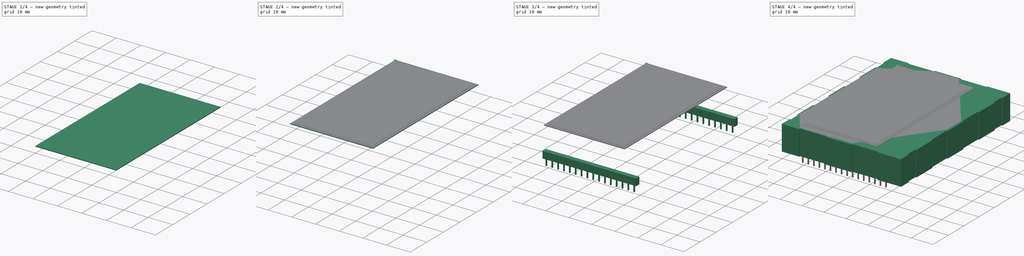
[diagram: build sequence overview — one tinted view per stage of 4, left to right]
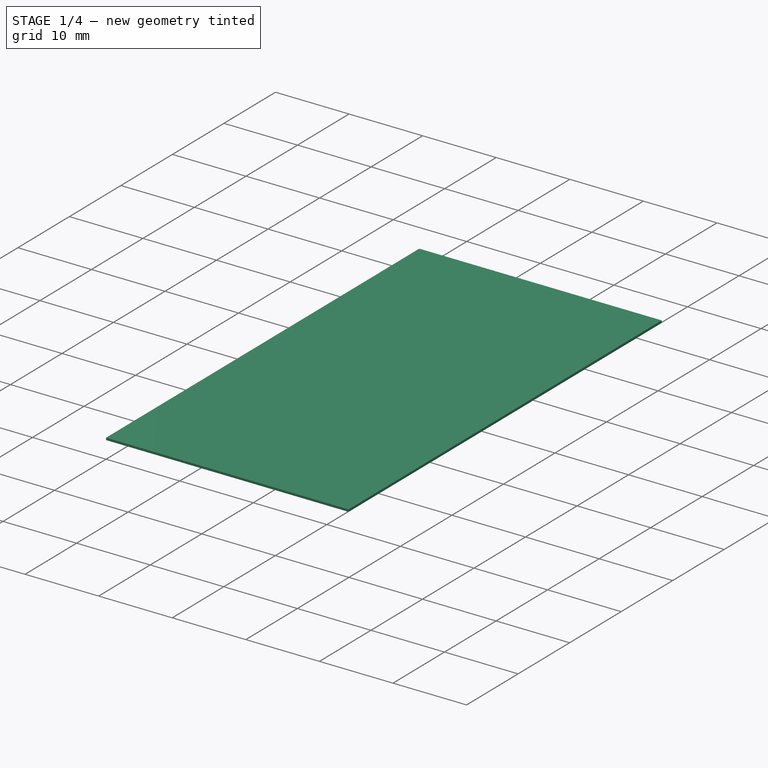
[diagram: stage 1 of 4 — iso view after this stage's code; geometry added in this stage tinted green]
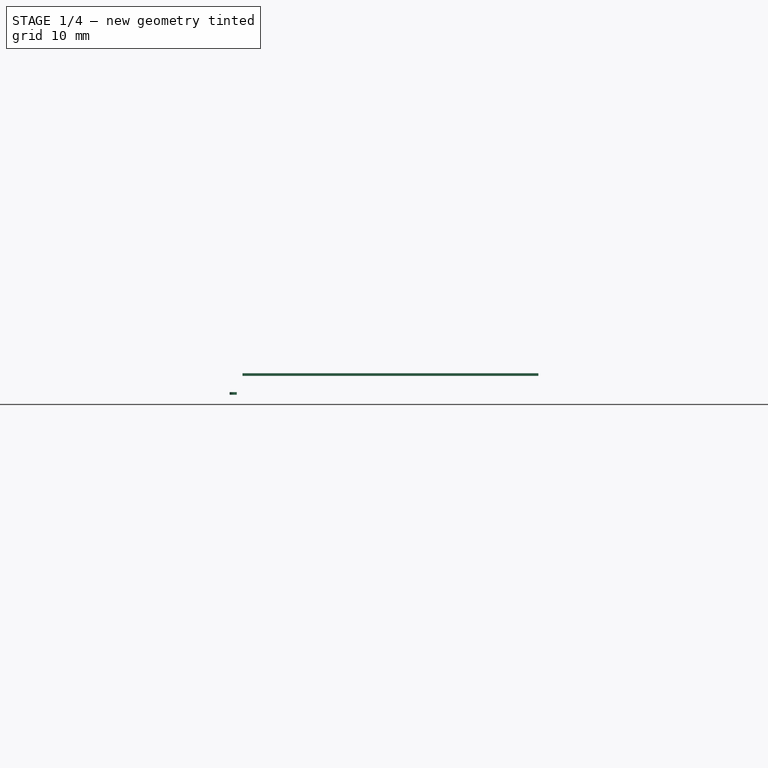
[diagram: stage 1 of 4 — front view after this stage's code; geometry added in this stage tinted green]
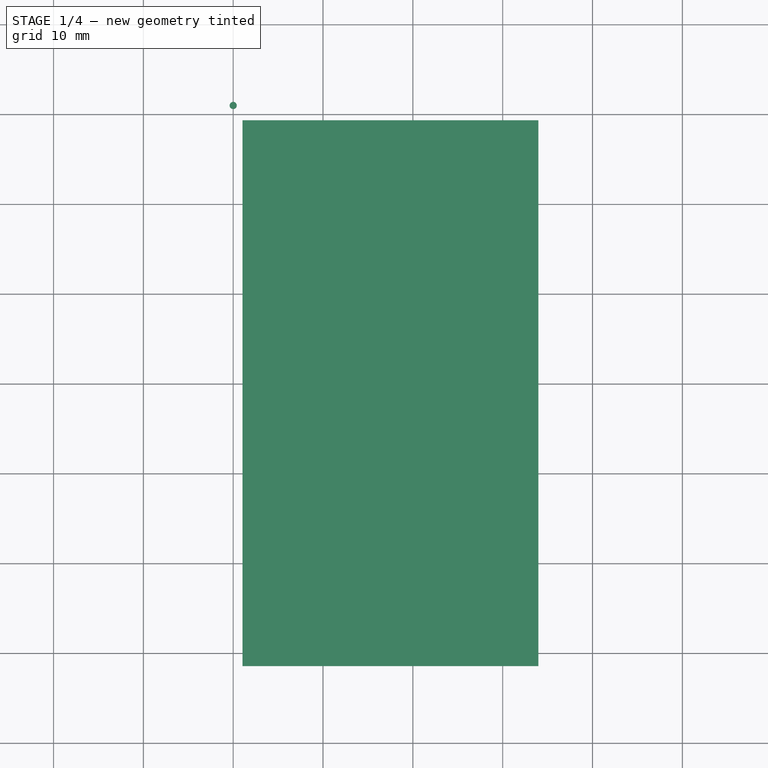
[diagram: stage 1 of 4 — top view after this stage's code; geometry added in this stage tinted green]
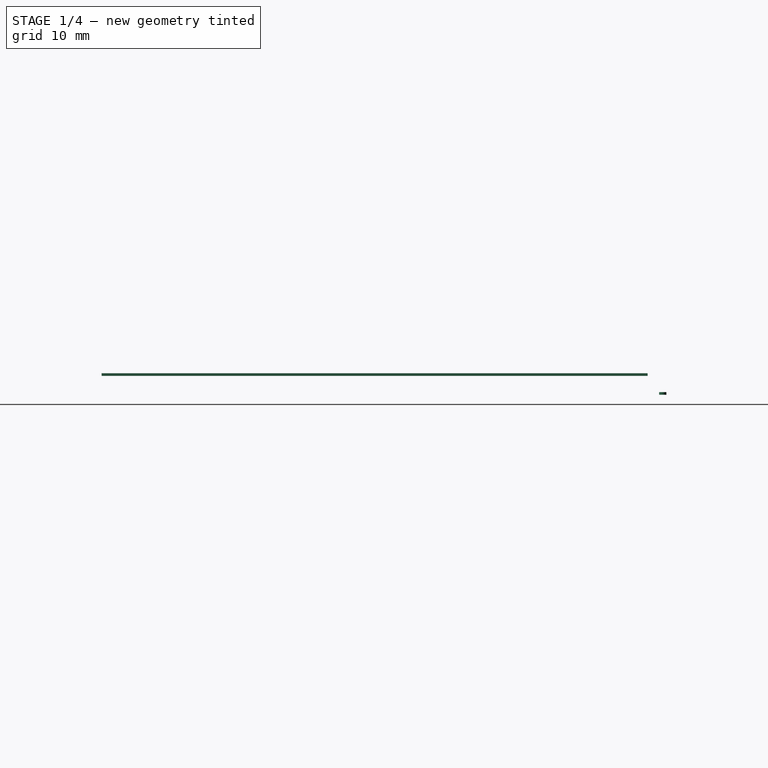
[diagram: stage 1 of 4 — right view after this stage's code; geometry added in this stage tinted green]
FCSTD DOCUMENT  (FreeCAD 0.17R11223 (Git))
Label: EA-eDIP128B-XXX_5
License: All rights reserved
LicenseURL: http://en.wikipedia.org/wiki/All_rights_reserved
objects: Part::Box×5, Sketcher::SketchObject×1, PartDesign::Pad×1, PartDesign::Body×1, Part::Fillet×1, Part::FeaturePython×1, Part::Cylinder×1, Part::MultiFuse×1
note: 13 computed .brp shape members not serialized (recipe doc carries the construction recipe); baked Part::Feature solids carry a one-line shape summary decoded from their .brp

FEATURE [Part::Cylinder] Cylinder
  Angle = 360
  AttacherType = Attacher::AttachEngine3D
  Height = 0.3
  Placement = pos=(0,1,11.4) rot=(0,0,1;0rad)
  Radius = 0.4
FEATURE [Part::Box] Box004  label="Display"
  AttacherType = Attacher::AttachEngine3D
  Height = 0.3
  Length = 32.945
  Placement = pos=(1.03,-61.46,13.5) rot=(0,0,1;0rad)
  Width = 60.78
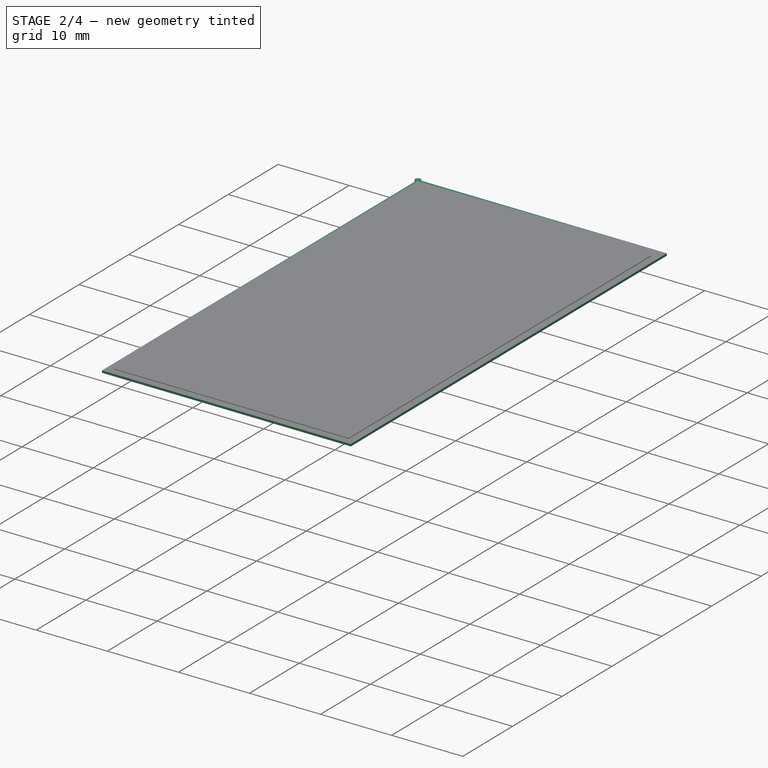
[diagram: stage 2 of 4 — iso view after this stage's code; geometry added in this stage tinted green]
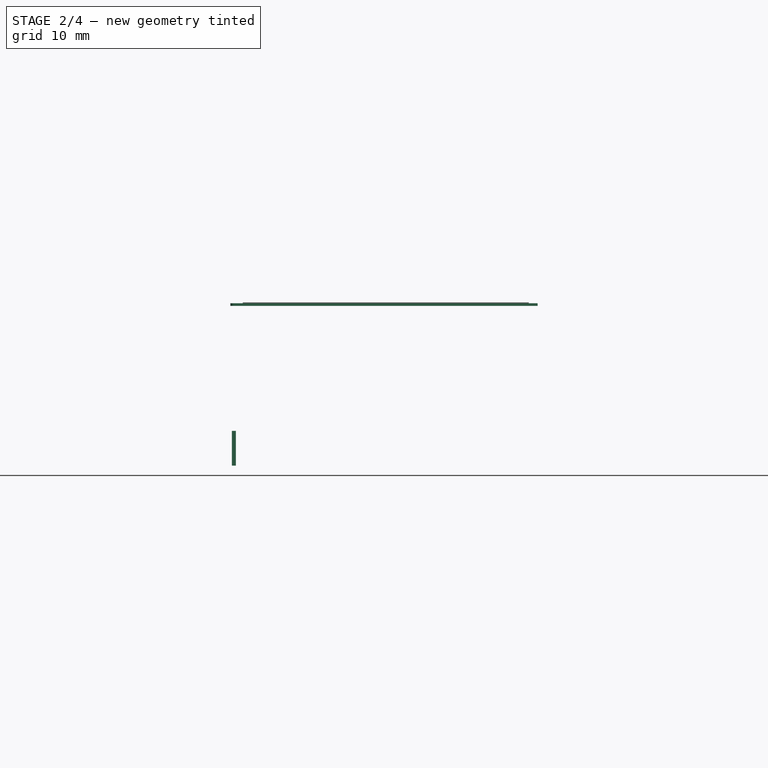
[diagram: stage 2 of 4 — front view after this stage's code; geometry added in this stage tinted green]
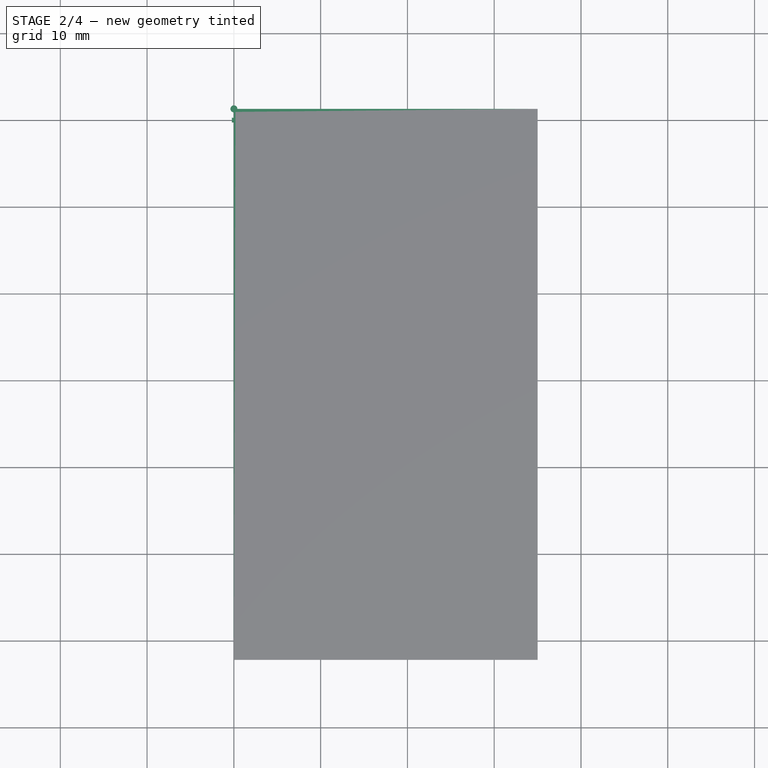
[diagram: stage 2 of 4 — top view after this stage's code; geometry added in this stage tinted green]
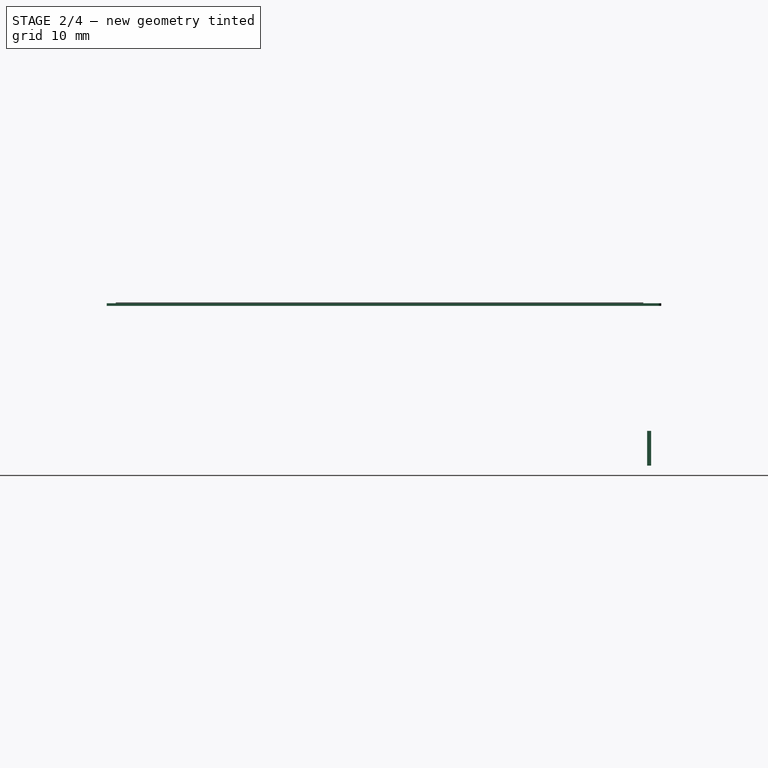
[diagram: stage 2 of 4 — right view after this stage's code; geometry added in this stage tinted green]
FEATURE [Part::Box] Box002  label="Pin"
  AttacherType = Attacher::AttachEngine3D
  Height = 4
  Length = 0.46
  Placement = pos=(-0.23,-0.23,-5) rot=(0,0,1;0rad)
  Width = 0.46
FEATURE [Part::Box] Box003  label="Kub002"
  AttacherType = Attacher::AttachEngine3D
  Height = 0.3
  Length = 35
  Placement = pos=(0,-62.5,11.4) rot=(0,0,1;0rad)
  Width = 63.5
FEATURE [Part::MultiFuse] Fusion  label="DisplayFrame"
  Placement = pos=(0,0,2) rot=(0,0,1;0rad)
  Shapes = -> [Box003,Cylinder]
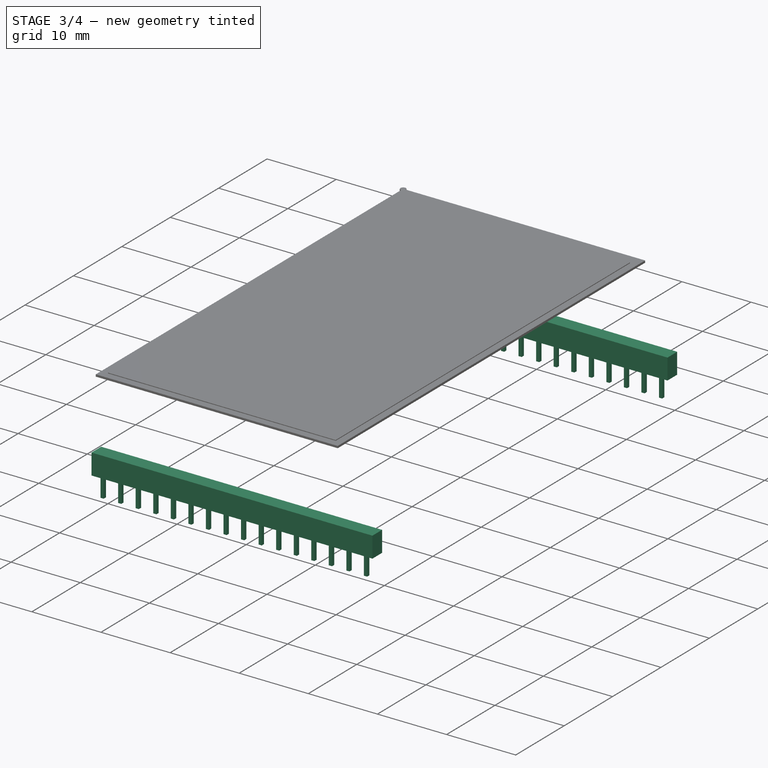
[diagram: stage 3 of 4 — iso view after this stage's code; geometry added in this stage tinted green]
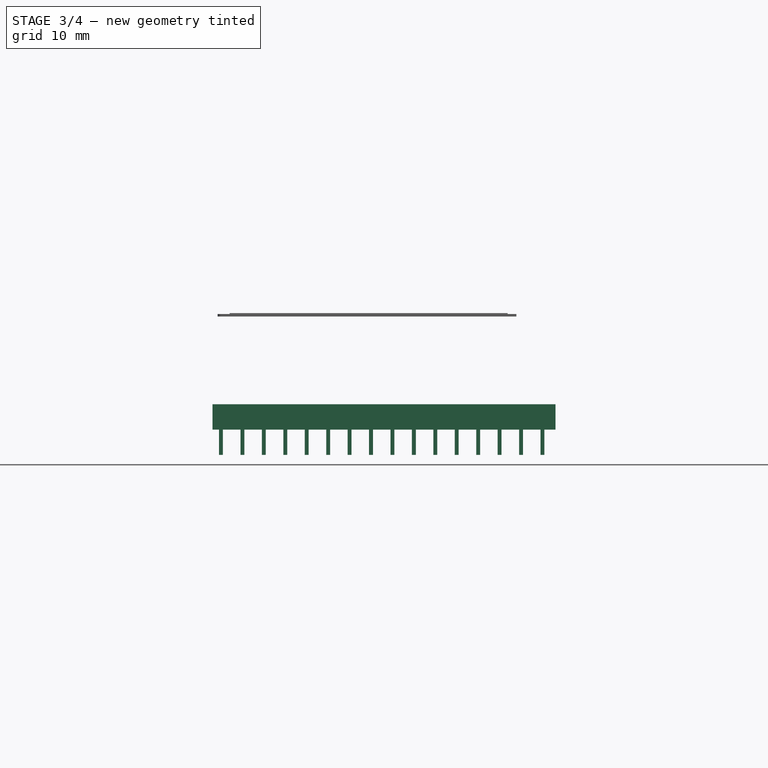
[diagram: stage 3 of 4 — front view after this stage's code; geometry added in this stage tinted green]
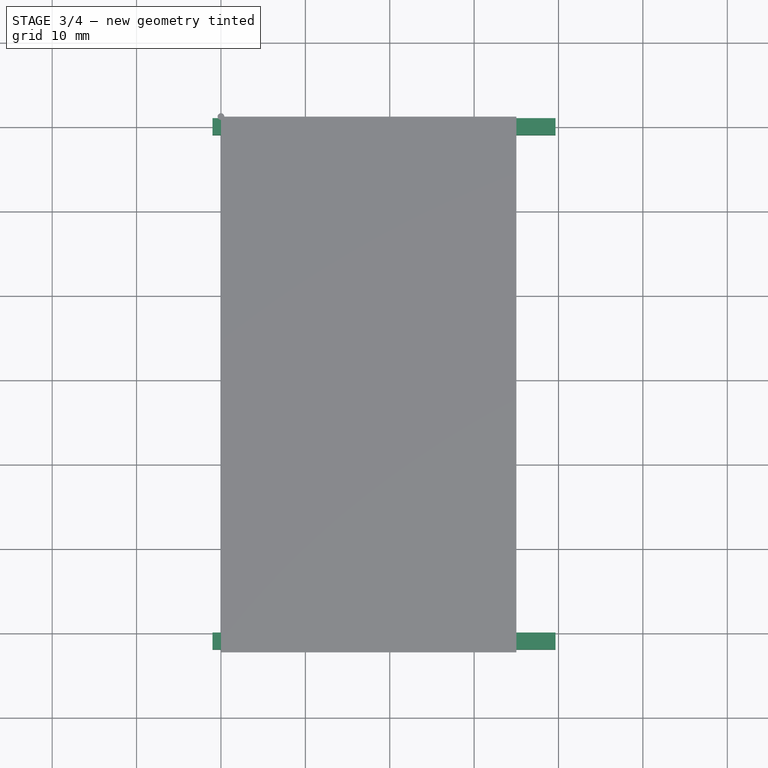
[diagram: stage 3 of 4 — top view after this stage's code; geometry added in this stage tinted green]
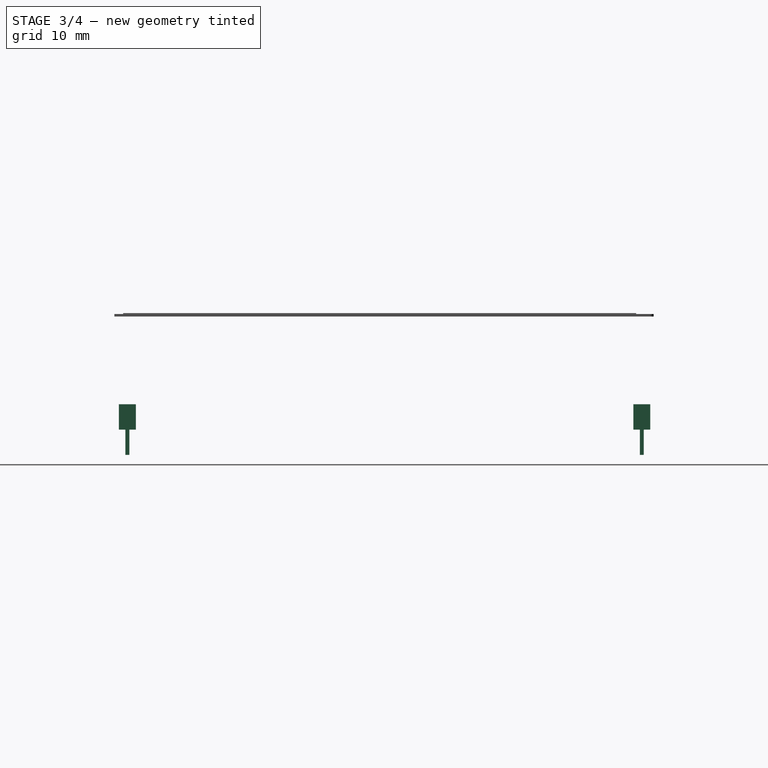
[diagram: stage 3 of 4 — right view after this stage's code; geometry added in this stage tinted green]
FEATURE [Part::Box] Box  label="Kub"
  AttacherType = Attacher::AttachEngine3D
  Height = 3
  Length = 40.64
  Placement = pos=(-1,-1,0) rot=(0,0,1;0rad)
  Width = 2
FEATURE [Part::Box] Box001  label="Kub001"
  AttacherType = Attacher::AttachEngine3D
  Height = 3
  Length = 40.64
  Placement = pos=(-1,-61.96,0) rot=(0,0,1;0rad)
  Width = 2
FEATURE [Part::FeaturePython] Array  label="Pins"  # Draft array (typed FeaturePython)
  Angle = 360
  ArrayType = 0
  Axis = (0,0,1)
  Base = -> Box002
  Center = (0,0,0)
  Fuse = false
  IntervalAxis = (0,0,0)
  IntervalX = (2.54,0,0)
  IntervalY = (0,-60.96,0)
  IntervalZ = (0,0,0)
  NumberPolar = 1
  NumberX = 16
  NumberY = 2
  NumberZ = 1
  Placement = pos=(0,0,2) rot=(0,0,1;0rad)
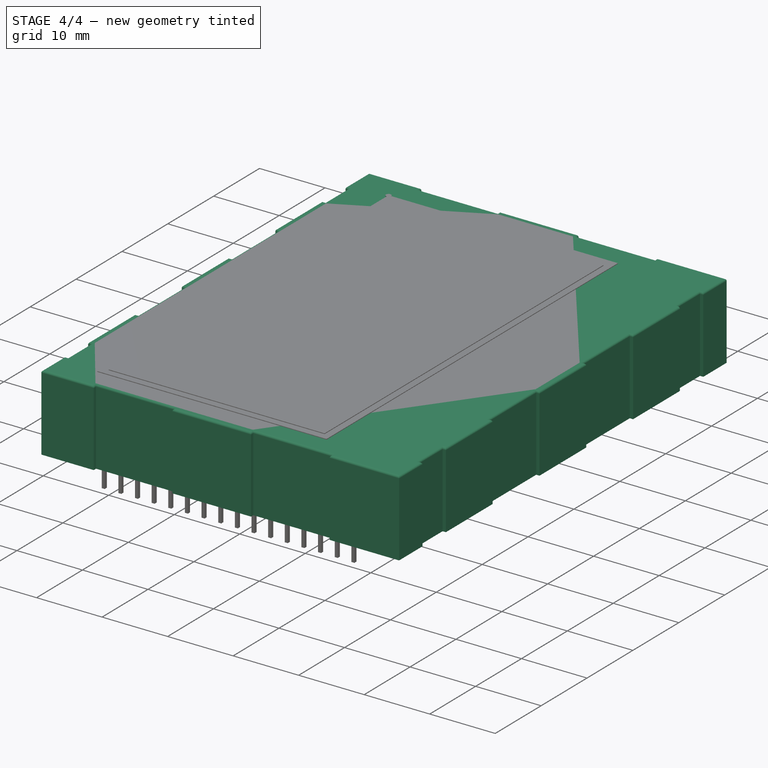
[diagram: stage 4 of 4 — iso view after this stage's code; geometry added in this stage tinted green]
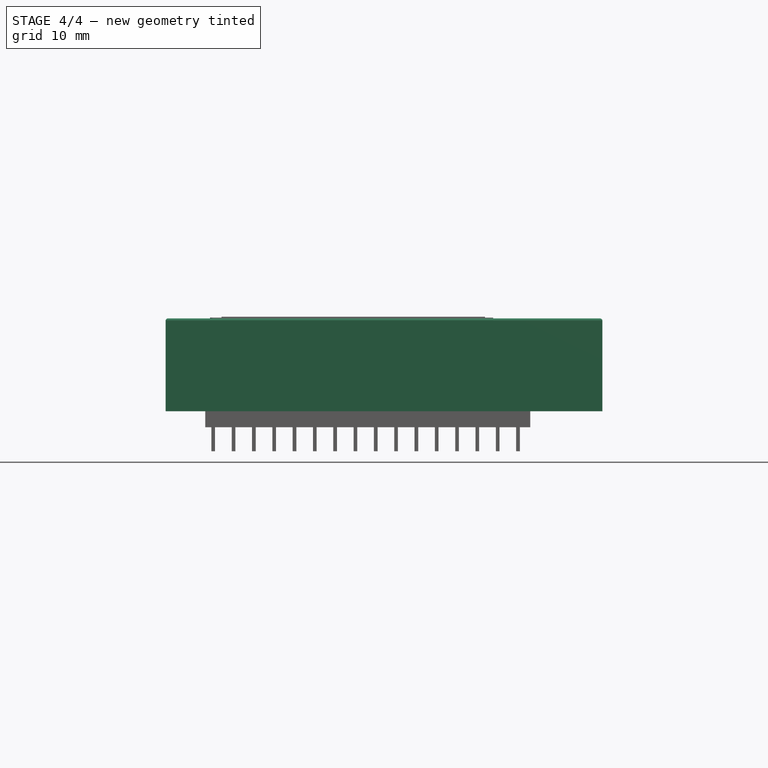
[diagram: stage 4 of 4 — front view after this stage's code; geometry added in this stage tinted green]
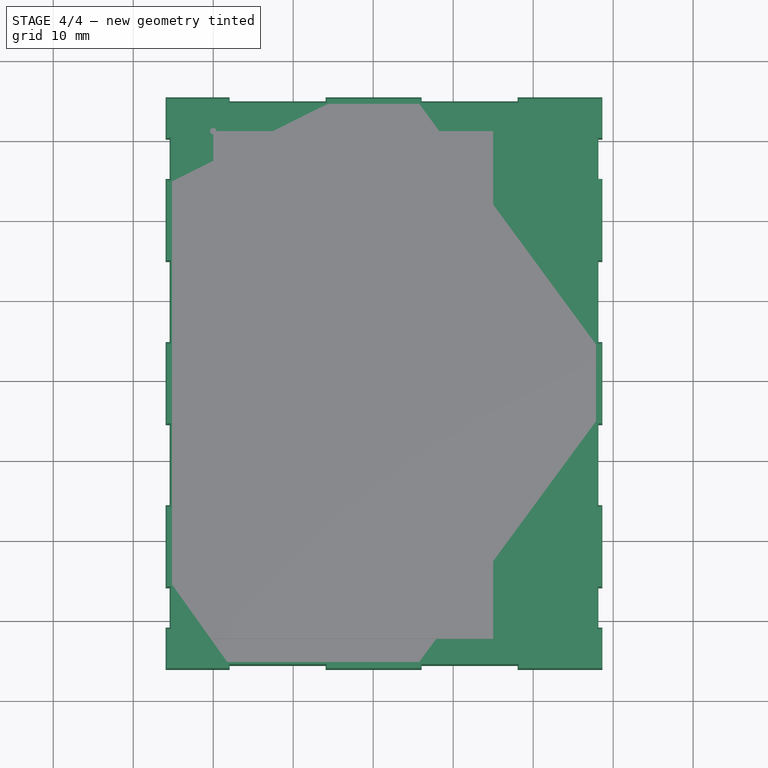
[diagram: stage 4 of 4 — top view after this stage's code; geometry added in this stage tinted green]
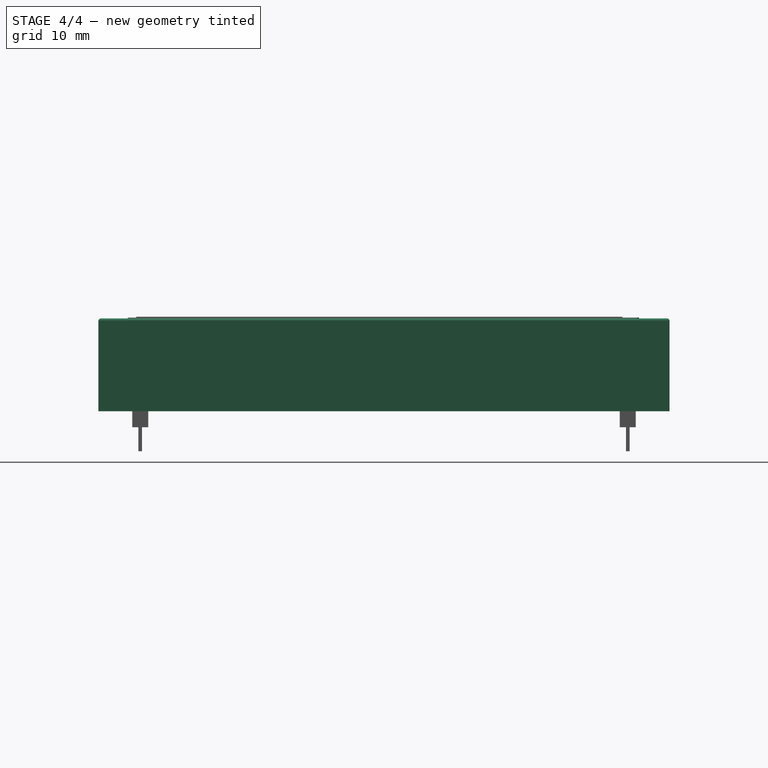
[diagram: stage 4 of 4 — right view after this stage's code; geometry added in this stage tinted green]
FEATURE [Sketcher::SketchObject] Sketch
  MapMode = 5
  Support = -> [XY_Plane]
  sketch-geometry (52):
    g0: LineSegment StartX=-5.95 StartY=5.22 StartZ=0 EndX=2.05 EndY=5.22 EndZ=0
    g1: LineSegment StartX=2.05 StartY=5.22 StartZ=0 EndX=2.05 EndY=4.72 EndZ=0
    g2: LineSegment StartX=2.05 StartY=4.72 StartZ=0 EndX=14.05 EndY=4.72 EndZ=0
    g3: LineSegment StartX=14.05 StartY=4.72 StartZ=0 EndX=14.05 EndY=5.22 EndZ=0
    g4: LineSegment StartX=14.05 StartY=5.22 StartZ=0 EndX=26.05 EndY=5.22 EndZ=0
    g5: LineSegment StartX=26.05 StartY=5.22 StartZ=0 EndX=26.05 EndY=4.72 EndZ=0
    g6: LineSegment StartX=26.05 StartY=4.72 StartZ=0 EndX=38.05 EndY=4.72 EndZ=0
    g7: LineSegment StartX=38.05 StartY=4.72 StartZ=0 EndX=38.05 EndY=5.22 EndZ=0
    g8: LineSegment StartX=38.05 StartY=5.22 StartZ=0 EndX=48.65 EndY=5.22 EndZ=0
    g9: LineSegment StartX=48.65 StartY=5.22 StartZ=0 EndX=48.65 EndY=0.12 EndZ=0
    g10: LineSegment StartX=48.65 StartY=0.12 StartZ=0 EndX=48.15 EndY=0.12 EndZ=0
    g11: LineSegment StartX=48.15 StartY=0.12 StartZ=0 EndX=48.15 EndY=-4.98 EndZ=0
    g12: LineSegment StartX=48.15 StartY=-4.98 StartZ=0 EndX=48.65 EndY=-4.98 EndZ=0
    g13: LineSegment StartX=48.65 StartY=-4.98 StartZ=0 EndX=48.65 EndY=-15.18 EndZ=0
    g14: LineSegment StartX=48.65 StartY=-15.18 StartZ=0 EndX=48.15 EndY=-15.18 EndZ=0
    g15: LineSegment StartX=48.15 StartY=-15.18 StartZ=0 EndX=48.15 EndY=-25.38 EndZ=0
    g16: LineSegment StartX=48.15 StartY=-25.38 StartZ=0 EndX=48.65 EndY=-25.38 EndZ=0
    g17: LineSegment StartX=48.65 StartY=-25.38 StartZ=0 EndX=48.65 EndY=-35.58 EndZ=0
    g18: LineSegment StartX=48.65 StartY=-35.58 StartZ=0 EndX=48.15 EndY=-35.58 EndZ=0
    g19: LineSegment StartX=48.15 StartY=-35.58 StartZ=0 EndX=48.15 EndY=-45.78 EndZ=0
    g20: LineSegment StartX=48.15 StartY=-45.78 StartZ=0 EndX=48.65 EndY=-45.78 EndZ=0
    g21: LineSegment StartX=48.65 StartY=-45.78 StartZ=0 EndX=48.65 EndY=-55.98 EndZ=0
    g22: LineSegment StartX=48.65 StartY=-55.98 StartZ=0 EndX=48.15 EndY=-55.98 EndZ=0
    g23: LineSegment StartX=48.15 StartY=-55.98 StartZ=0 EndX=48.15 EndY=-61.08 EndZ=0
    g24: LineSegment StartX=48.15 StartY=-61.08 StartZ=0 EndX=48.65 EndY=-61.08 EndZ=0
    g25: LineSegment StartX=48.65 StartY=-61.08 StartZ=0 EndX=48.65 EndY=-66.18 EndZ=0
    g26: LineSegment StartX=48.65 StartY=-66.18 StartZ=0 EndX=38.05 EndY=-66.18 EndZ=0
    g27: LineSegment StartX=38.05 StartY=-66.18 StartZ=0 EndX=38.05 EndY=-65.68 EndZ=0
    g28: LineSegment StartX=38.05 StartY=-65.68 StartZ=0 EndX=26.05 EndY=-65.68 EndZ=0
    g29: LineSegment StartX=26.05 StartY=-65.68 StartZ=0 EndX=26.05 EndY=-66.18 EndZ=0
    g30: LineSegment StartX=26.05 StartY=-66.18 StartZ=0 EndX=14.05 EndY=-66.18 EndZ=0
    g31: LineSegment StartX=14.05 StartY=-66.18 StartZ=0 EndX=14.05 EndY=-65.68 EndZ=0
    g32: LineSegment StartX=14.05 StartY=-65.68 StartZ=0 EndX=2.05 EndY=-65.68 EndZ=0
    g33: LineSegment StartX=2.05 StartY=-65.68 StartZ=0 EndX=2.05 EndY=-66.18 EndZ=0
    g34: LineSegment StartX=2.05 StartY=-66.18 StartZ=0 EndX=-5.95 EndY=-66.18 EndZ=0
    g35: LineSegment StartX=-5.95 StartY=-66.18 StartZ=0 EndX=-5.95 EndY=-61.08 EndZ=0
    g36: LineSegment StartX=-5.95 StartY=-61.08 StartZ=0 EndX=-5.45 EndY=-61.08 EndZ=0
    g37: LineSegment StartX=-5.45 StartY=-61.08 StartZ=0 EndX=-5.45 EndY=-55.98 EndZ=0
    g38: LineSegment StartX=-5.45 StartY=-55.98 StartZ=0 EndX=-5.95 EndY=-55.98 EndZ=0
    g39: LineSegment StartX=-5.95 StartY=-55.98 StartZ=0 EndX=-5.95 EndY=-45.78 EndZ=0
    g40: LineSegment StartX=-5.95 StartY=-45.78 StartZ=0 EndX=-5.45 EndY=-45.78 EndZ=0
    g41: LineSegment StartX=-5.45 StartY=-45.78 StartZ=0 EndX=-5.45 EndY=-35.58 EndZ=0
    g42: LineSegment StartX=-5.45 StartY=-35.58 StartZ=0 EndX=-5.95 EndY=-35.58 EndZ=0
    g43: LineSegment StartX=-5.95 StartY=-35.58 StartZ=0 EndX=-5.95 EndY=-25.38 EndZ=0
    g44: LineSegment StartX=-5.95 StartY=-25.38 StartZ=0 EndX=-5.45 EndY=-25.38 EndZ=0
    g45: LineSegment StartX=-5.45 StartY=-25.38 StartZ=0 EndX=-5.45 EndY=-15.18 EndZ=0
    g46: LineSegment StartX=-5.45 StartY=-15.18 StartZ=0 EndX=-5.95 EndY=-15.18 EndZ=0
    g47: LineSegment StartX=-5.95 StartY=-15.18 StartZ=0 EndX=-5.95 EndY=-4.98 EndZ=0
    g48: LineSegment StartX=-5.95 StartY=-4.98 StartZ=0 EndX=-5.45 EndY=-4.98 EndZ=0
    g49: LineSegment StartX=-5.45 StartY=-4.98 StartZ=0 EndX=-5.45 EndY=0.12 EndZ=0
    g50: LineSegment StartX=-5.45 StartY=0.12 StartZ=0 EndX=-5.95 EndY=0.12 EndZ=0
    g51: LineSegment StartX=-5.95 StartY=0.12 StartZ=0 EndX=-5.95 EndY=5.22 EndZ=0
  constraints (156):
    c: Horizontal(g0)
    c: Coincident(g0,g1)
    c: Vertical(g1)
    c: Coincident(g1,g2)
    c: Horizontal(g2)
    c: Coincident(g2,g3)
    c: Vertical(g3)
    c: Coincident(g3,g4)
    c: Horizontal(g4)
    c: Coincident(g4,g5)
    c: Vertical(g5)
    c: Coincident(g5,g6)
    c: Horizontal(g6)
    c: Coincident(g6,g7)
    c: Vertical(g7)
    c: Coincident(g7,g8)
    c: Horizontal(g8)
    c: Coincident(g8,g9)
    c: Vertical(g9)
    c: Coincident(g9,g10)
    c: Horizontal(g10)
    c: Coincident(g10,g11)
    c: Vertical(g11)
    c: Coincident(g11,g12)
    c: Horizontal(g12)
    c: Coincident(g12,g13)
    c: Vertical(g13)
    c: Coincident(g13,g14)
    c: Horizontal(g14)
    c: Coincident(g14,g15)
    c: Vertical(g15)
    c: Coincident(g15,g16)
    c: Horizontal(g16)
    c: Coincident(g16,g17)
    c: Vertical(g17)
    c: Coincident(g17,g18)
    c: Horizontal(g18)
    c: Coincident(g18,g19)
    c: Vertical(g19)
    c: Coincident(g19,g20)
    c: Horizontal(g20)
    c: Coincident(g20,g21)
    c: Vertical(g21)
    c: Coincident(g21,g22)
    c: Horizontal(g22)
    c: Coincident(g22,g23)
    c: Vertical(g23)
    c: Coincident(g23,g24)
    c: Horizontal(g24)
    c: Coincident(g24,g25)
    c: Vertical(g25)
    c: Coincident(g25,g26)
    c: Horizontal(g26)
    c: Coincident(g26,g27)
    c: Vertical(g27)
    c: Coincident(g27,g28)
    c: Horizontal(g28)
    c: Coincident(g28,g29)
    c: Vertical(g29)
    c: Coincident(g29,g30)
    c: Horizontal(g30)
    c: Coincident(g30,g31)
    c: Vertical(g31)
    c: Coincident(g31,g32)
    c: Horizontal(g32)
    c: Coincident(g32,g33)
    c: Vertical(g33)
    c: Coincident(g33,g34)
    c: Horizontal(g34)
    c: Coincident(g34,g35)
    c: Vertical(g35)
    c: Coincident(g35,g36)
    c: Horizontal(g36)
    c: Coincident(g36,g37)
    c: Vertical(g37)
    c: Coincident(g37,g38)
    c: Horizontal(g38)
    c: Coincident(g38,g39)
    c: Vertical(g39)
    c: Coincident(g39,g40)
    c: Horizontal(g40)
    c: Coincident(g40,g41)
    c: Vertical(g41)
    c: Coincident(g41,g42)
    c: Horizontal(g42)
    c: Coincident(g42,g43)
    c: Vertical(g43)
    c: Coincident(g43,g44)
    c: Horizontal(g44)
    c: Coincident(g44,g45)
    c: Vertical(g45)
    c: Coincident(g45,g46)
    c: Horizontal(g46)
    c: Coincident(g46,g47)
    c: Vertical(g47)
    c: Coincident(g47,g48)
    c: Horizontal(g48)
    c: Coincident(g48,g49)
    c: Vertical(g49)
    c: Coincident(g49,g50)
    c: Horizontal(g50)
    c: Coincident(g50,g51)
    c: Coincident(g51,g0)
    c: Vertical(g51)
    c: DistanceX(g10,g10) = 0.5
    c: DistanceX(g12,g12) = 0.5
    c: DistanceX(g14,g14) = 0.5
    c: DistanceX(g16,g16) = 0.5
    c: DistanceX(g18,g18) = 0.5
    c: DistanceX(g20,g20) = 0.5
    c: DistanceX(g22,g22) = 0.5
    c: DistanceX(g24,g24) = 0.5
    c: DistanceX(g50,g50) = 0.5
    c: DistanceX(g48,g48) = 0.5
    c: DistanceX(g46,g46) = 0.5
    c: DistanceX(g44,g44) = 0.5
    c: DistanceX(g42,g42) = 0.5
    c: DistanceX(g40,g40) = 0.5
    c: DistanceX(g38,g38) = 0.5
    c: DistanceX(g36,g36) = 0.5
    c: DistanceY(g33,g33) = 0.5
    c: DistanceY(g31,g31) = 0.5
    c: DistanceY(g29,g29) = 0.5
    c: DistanceY(g27,g27) = 0.5
    c: DistanceY(g1,g1) = 0.5
    c: DistanceY(g3,g3) = 0.5
    c: DistanceY(g5,g5) = 0.5
    c: DistanceY(g7,g7) = 0.5
    c: DistanceY(g34,g0) = 71.4
    c: DistanceX(g0,g8) = 54.6
    c: DistanceY(g47,g47) = 10.2
    c: DistanceY(g45,g45) = 10.2
    c: DistanceY(g43,g43) = 10.2
    c: DistanceY(g41,g41) = 10.2
    c: DistanceY(g39,g39) = 10.2
    c: DistanceY(g37,g37) = 5.1
    c: DistanceY(g49,g49) = 5.1
    c: DistanceY(g51,g51) = 5.1
    c: DistanceX(g2,g2) = 12
    c: DistanceX(g6,g6) = 12
    c: DistanceX(g4,g4) = 12
    c: DistanceX(g0,g0) = 8
    c: DistanceX(g34,g34) = 8
    c: DistanceX(g32,g32) = 12
    c: DistanceX(g30,g30) = 12
    c: DistanceX(g28,g28) = 12
    c: DistanceY(g9,g9) = 5.1
    c: DistanceY(g11,g11) = 5.1
    c: DistanceY(g13,g13) = 10.2
    c: DistanceY(g15,g15) = 10.2
    c: DistanceY(g17,g17) = 10.2
    c: DistanceY(g19,g19) = 10.2
    c: DistanceY(g21,g21) = 10.2
    c: DistanceY(g23,g23) = 5.1
    c: DistanceX(g0,g-1) = 5.95
    c: DistanceY(g-1,g0) = 5.22
FEATURE [PartDesign::Pad] Pad
  Length = 11.6
  Length2 = 100
  Profile = -> Sketch
  Type = 0
FEATURE [PartDesign::Body] Body
  Group = -> [Sketch,Pad]
  Origin = -> BodyOrigin
  Tip = -> Pad
FEATURE [Part::Fillet] Fillet
  Base = -> Pad
  Edges = 51 edges r=0.3: [Edge4,Edge7,Edge10,Edge13,Edge16,Edge19,Edge22,Edge25,Edge28,Edge31,Edge34,Edge37,Edge43,Edge46,Edge49,Edge52,Edge55,Edge58,Edge61,Edge64,Edge67,Edge70,Edge73,Edge76,Edge79,Edge82,Edge85,Edge88,Edge91,Edge94,Edge97,Edge100,Edge103,Edge106,Edge109,Edge112,Edge115,Edge118,Edge121,Edge124,Edge127,+10 more]
  Placement = pos=(0,0,2) rot=(0,0,1;0rad)
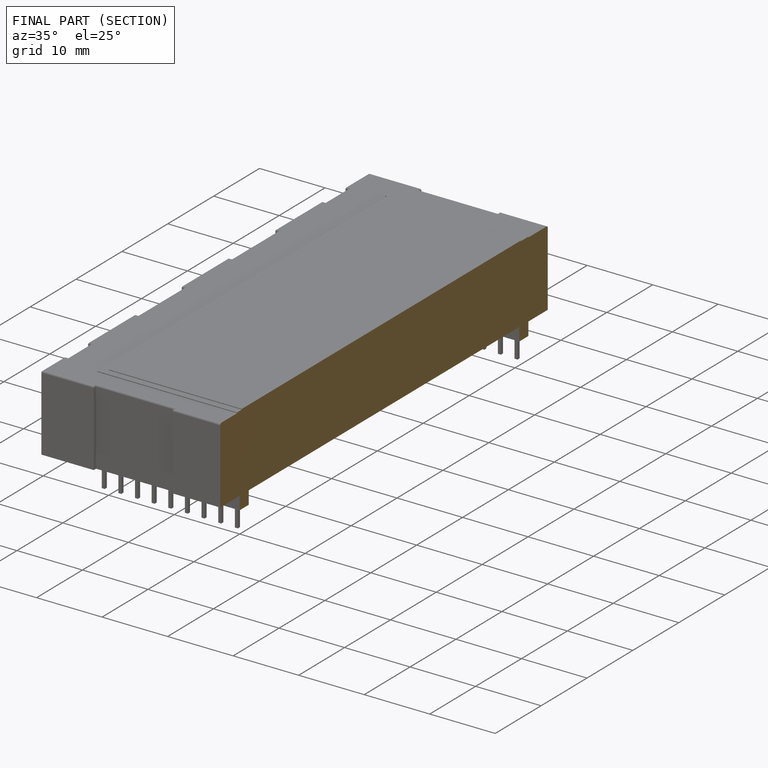
[diagram: finished part — half-section view (interior)]
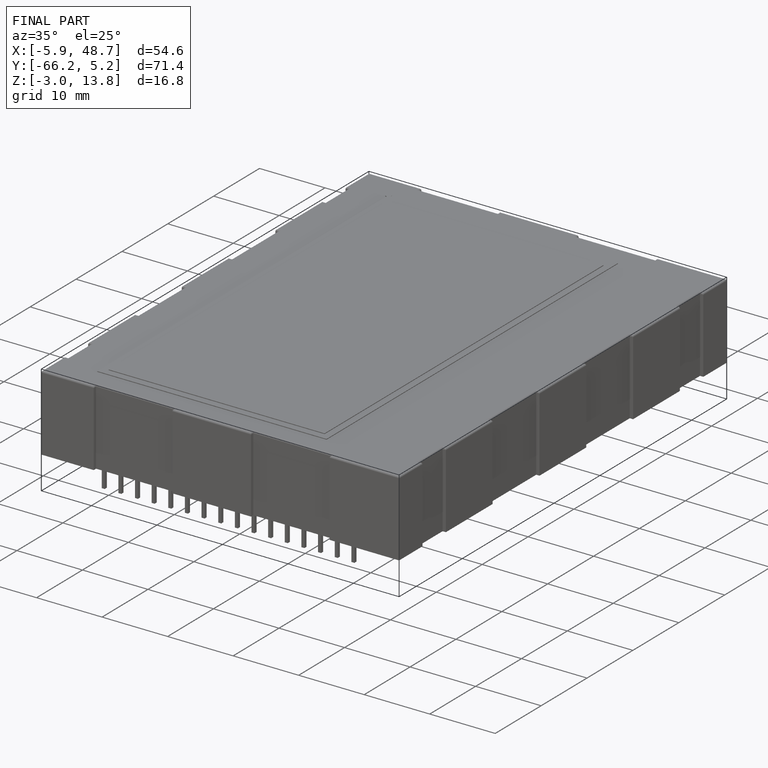
[diagram: finished part — iso view with bounding-box wireframe]
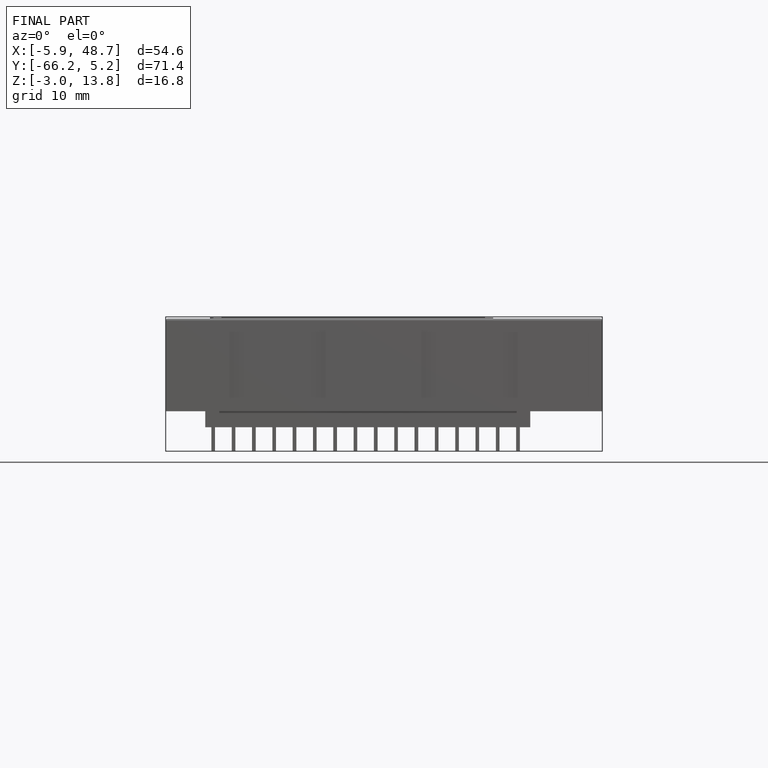
[diagram: finished part — front view with bounding-box wireframe]
